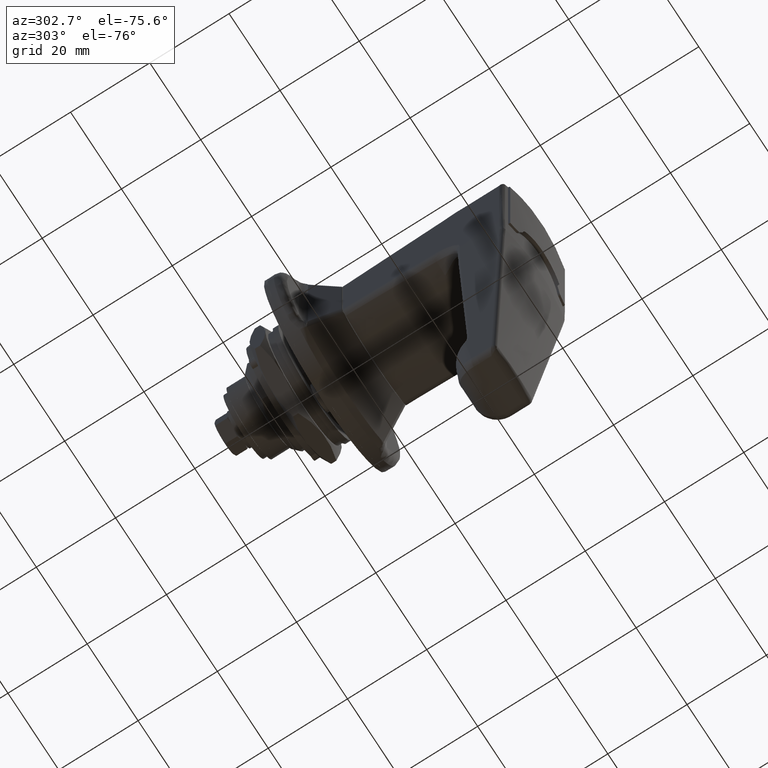
[diagram: clean part render]
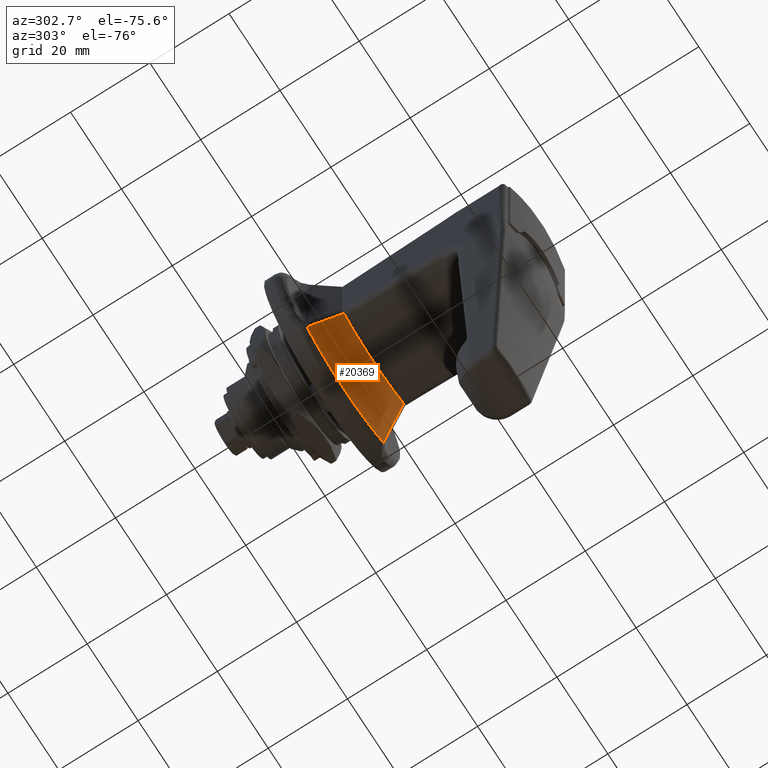
[diagram: same view with one face highlighted and labeled with its STEP entity id]
A machine part, auxiliary view. The second image highlights one B-rep face of the part: STEP entity #20369.
In plain terms, the highlighted face is a freeform B-spline surface patch.
Its self-contained STEP definition (entity closure, byte-faithful):
#17411=CARTESIAN_POINT('',(-12.317423571780660,-11.742579178297200,-10.773186300598161));
#17412=VERTEX_POINT('',#17411);
#17661=CARTESIAN_POINT('',(-12.317423571783280,11.742579177797600,-10.773186300909201));
#17662=VERTEX_POINT('',#17661);
#17676=CARTESIAN_POINT('',(-12.317423571780640,-11.742579178297200,-10.773186300598180));
#17677=CARTESIAN_POINT('',(-12.321921307287580,-10.860520241261300,-11.322452460196670));
#17678=CARTESIAN_POINT('',(-12.325578662772839,-9.949014943190678,-11.803118988646981));
#17679=CARTESIAN_POINT('',(-12.331659711338579,-8.070478089843295,-12.635092871213249));
#17680=CARTESIAN_POINT('',(-12.334077562975621,-7.103437036696949,-12.986378139702831));
#17681=CARTESIAN_POINT('',(-12.336194610548411,-5.983743178821182,-13.307552710566441));
#17682=CARTESIAN_POINT('',(-12.336421493370640,-5.858888675297977,-13.342204204330530));
#17683=CARTESIAN_POINT('',(-12.336859048984151,-5.608284770876806,-13.409422327969191));
#17684=CARTESIAN_POINT('',(-12.337069752709381,-5.482504640362691,-13.441994153030800));
#17685=CARTESIAN_POINT('',(-12.337676038687700,-5.105207246575358,-13.536220615145149));
#17686=CARTESIAN_POINT('',(-12.338046654547950,-4.853278270538231,-13.594513360883850));
#17687=CARTESIAN_POINT('',(-12.339064686495069,-4.096313467419974,-13.755979314439969));
#17688=CARTESIAN_POINT('',(-12.339618768889389,-3.590101573578827,-13.845760826718420));
#17689=CARTESIAN_POINT('',(-12.340943189073389,-2.066805871844187,-14.062042213478280));
#17690=CARTESIAN_POINT('',(-12.341382265058540,-1.045090721618571,-14.135805461785690));
#17691=CARTESIAN_POINT('',(-12.341389583350280,0.497092434095169,-14.137017111140381));
#17692=CARTESIAN_POINT('',(-12.341281692835830,1.012763199428358,-14.119091320412419));
#17693=CARTESIAN_POINT('',(-12.341006680330000,1.659384760429426,-14.073533295882211));
#17694=CARTESIAN_POINT('',(-12.340944563197009,1.788939796182027,-14.063250452550490));
#17695=CARTESIAN_POINT('',(-12.340806465748580,2.047507341523684,-14.040422508775690));
#17696=CARTESIAN_POINT('',(-12.340578588088730,2.434502867558866,-14.002799197587800));
#17697=CARTESIAN_POINT('',(-12.340288604093510,2.818961204606249,-13.955150978422679));
#17698=CARTESIAN_POINT('',(-12.339182288288820,4.094957002973668,-13.774465676126271));
#17699=CARTESIAN_POINT('',(-12.337859598565800,5.098155097167266,-13.560382340912319));
#17700=CARTESIAN_POINT('',(-12.335076907695370,6.577292862596758,-13.137873485035620));
#17701=CARTESIAN_POINT('',(-12.334012275017120,7.066041973760019,-12.980059910359961));
#17702=CARTESIAN_POINT('',(-12.332189098537929,7.792627681996719,-12.717507293581550));
#17703=CARTESIAN_POINT('',(-12.331543769536459,8.033731961012348,-12.625679252053500));
#17704=CARTESIAN_POINT('',(-12.330173684952220,8.513727020378672,-12.433277390365079));
#17705=CARTESIAN_POINT('',(-12.329448481672900,8.752757135772438,-12.332641786370310));
#17706=CARTESIAN_POINT('',(-12.327915235808430,9.227951979385930,-12.122724839028439));
#17707=CARTESIAN_POINT('',(-12.327108818821561,9.463629113947254,-12.013664815259469));
#17708=CARTESIAN_POINT('',(-12.325411506821750,9.931126813683976,-11.787307537817730));
#17709=CARTESIAN_POINT('',(-12.324520516126620,10.162958267598050,-11.669999115874511));
#17710=CARTESIAN_POINT('',(-12.321716718038569,10.851462792176060,-11.306249432457360));
#17711=CARTESIAN_POINT('',(-12.319672425206241,11.301552519610340,-11.047817630673320));
#17712=CARTESIAN_POINT('',(-12.317423571783280,11.742579177797600,-10.773186300909201));
#17713=B_SPLINE_CURVE_WITH_KNOTS('',3,(#17676,#17677,#17678,#17679,#17680,#17681,#17682,#17683,#17684,#17685,#17686,#17687,#17688,#17689,#17690,#17691,#17692,#17693,#17694,#17695,#17696,#17697,#17698,#17699,#17700,#17701,#17702,#17703,#17704,#17705,#17706,#17707,#17708,#17709,#17710,#17711,#17712),.UNSPECIFIED.,.F.,.U.,(4,2,2,2,2,2,2,2,2,2,1,2,2,2,2,2,2,2,4),(0.0,0.125000000000000,0.250000000000000,0.265625000000001,0.281250000000001,0.312500000000001,0.375000000000001,0.500000000000001,0.562500000000001,0.578125000000001,0.593750000000001,0.625000000000001,0.750000000000001,0.812500000000001,0.843750000000001,0.875000000000001,0.906250000000000,0.937500000000000,1.0),.UNSPECIFIED.);
#17714=EDGE_CURVE('',#17412,#17662,#17713,.T.);
#17894=CARTESIAN_POINT('',(-5.092936571873399,15.064256327149250,-17.880553227088448));
#17895=VERTEX_POINT('',#17894);
#18245=CARTESIAN_POINT('',(-5.092936571873170,-15.064256327244800,-17.880553227010701));
#18246=VERTEX_POINT('',#18245);
#18260=CARTESIAN_POINT('',(-5.092936571873399,15.064256327149250,-17.880553227088448));
#18261=CARTESIAN_POINT('',(-5.093573879232038,14.798796386535850,-18.096562572756032));
#18262=CARTESIAN_POINT('',(-5.094091626450478,14.528848009651380,-18.306798902327689));
#18263=CARTESIAN_POINT('',(-5.094997048155808,13.979962742884970,-18.715710279950731));
#18264=CARTESIAN_POINT('',(-5.095383115909922,13.701959241524451,-18.913684803109341));
#18265=CARTESIAN_POINT('',(-5.096452156482028,12.858187275000020,-19.487950196825210));
#18266=CARTESIAN_POINT('',(-5.097060267624521,12.282350101150779,-19.844858911698470));
#18267=CARTESIAN_POINT('',(-5.098278485115817,11.104525556872000,-20.507769596008611));
#18268=CARTESIAN_POINT('',(-5.098885670942255,10.502537436394370,-20.813770109957940));
#18269=CARTESIAN_POINT('',(-5.099896533137595,9.272355056520201,-21.374755815320199));
#18270=CARTESIAN_POINT('',(-5.100285548357850,8.644156979355515,-21.629733597931448));
#18271=CARTESIAN_POINT('',(-5.100331876128971,7.842166179383670,-21.915862431215640));
#18272=CARTESIAN_POINT('',(-5.100323813111617,7.680929495255715,-21.971455865488899));
#18273=CARTESIAN_POINT('',(-5.100285135311588,7.356762144812294,-22.079345084691582));
#18274=CARTESIAN_POINT('',(-5.100254476121162,7.193681893225183,-22.131683954354319));
#18275=CARTESIAN_POINT('',(-5.100144934459324,6.703977137011113,-22.283065112543699));
#18276=CARTESIAN_POINT('',(-5.100049409848879,6.376361573929082,-22.376664135255702));
#18277=CARTESIAN_POINT('',(-5.099790927191742,5.390127492032658,-22.635814078182310));
#18278=CARTESIAN_POINT('',(-5.099668316197066,4.728127389588268,-22.779754992825310));
#18279=CARTESIAN_POINT('',(-5.099708972254287,3.395225386857410,-23.010749852892630));
#18280=CARTESIAN_POINT('',(-5.099871270234316,2.724323407538057,-23.097803293485448));
#18281=CARTESIAN_POINT('',(-5.100282114188340,1.373551249201436,-23.214598911625089));
#18282=CARTESIAN_POINT('',(-5.100531667811366,0.693681655061493,-23.244344826590950));
#18283=CARTESIAN_POINT('',(-5.100535231624023,-0.333042699724637,-23.244741787879718));
#18284=CARTESIAN_POINT('',(-5.100470484505174,-0.675035285782485,-23.237491649076439));
#18285=CARTESIAN_POINT('',(-5.100294383243510,-1.358361195801673,-23.208259045342590));
#18286=CARTESIAN_POINT('',(-5.100182943603205,-1.699953844060525,-23.186256079558039));
#18287=CARTESIAN_POINT('',(-5.099871670321132,-2.722321151304927,-23.098212467638980));
#18288=CARTESIAN_POINT('',(-5.099708650213115,-3.396629039821856,-23.010571335530699));
#18289=CARTESIAN_POINT('',(-5.099668504207188,-4.731148323856801,-22.779166504454778));
#18290=CARTESIAN_POINT('',(-5.099791353676099,-5.391358679446481,-22.635398665215671));
#18291=CARTESIAN_POINT('',(-5.100133557785642,-6.697820136067290,-22.292286849616680));
#18292=CARTESIAN_POINT('',(-5.100355034385453,-7.344071244905527,-22.092942903880129));
#18293=CARTESIAN_POINT('',(-5.100307945141661,-8.302865796354919,-21.751796402506510));
#18294=CARTESIAN_POINT('',(-5.100209697015655,-8.620699049747049,-21.631054185218940));
#18295=CARTESIAN_POINT('',(-5.099961758299749,-9.094756271433075,-21.439220573917499));
#18296=CARTESIAN_POINT('',(-5.099863963677028,-9.252326563558732,-21.373489300862669));
#18297=CARTESIAN_POINT('',(-5.099645960990250,-9.566560916365150,-21.238418771520710));
#18298=CARTESIAN_POINT('',(-5.099525883982622,-9.723023378604633,-21.169162405207292));
#18299=CARTESIAN_POINT('',(-5.098889112558140,-10.499885495418180,-20.815289657306401));
#18300=CARTESIAN_POINT('',(-5.098277018199330,-11.106075174674070,-20.507040400596111));
#18301=CARTESIAN_POINT('',(-5.097053792016768,-12.288478798428169,-19.841265617692631));
#18302=CARTESIAN_POINT('',(-5.096444783713167,-12.864691667896910,-19.483738320053899));
#18303=CARTESIAN_POINT('',(-5.095020937902042,-13.987127373584491,-18.719384362803840));
#18304=CARTESIAN_POINT('',(-5.094211150591439,-14.533351440846840,-18.312559716798841));
#18305=CARTESIAN_POINT('',(-5.092936571873170,-15.064256327244800,-17.880553227010701));
#18306=B_SPLINE_CURVE_WITH_KNOTS('',3,(#18260,#18261,#18262,#18263,#18264,#18265,#18266,#18267,#18268,#18269,#18270,#18271,#18272,#18273,#18274,#18275,#18276,#18277,#18278,#18279,#18280,#18281,#18282,#18283,#18284,#18285,#18286,#18287,#18288,#18289,#18290,#18291,#18292,#18293,#18294,#18295,#18296,#18297,#18298,#18299,#18300,#18301,#18302,#18303,#18304,#18305),.UNSPECIFIED.,.F.,.U.,(4,2,2,2,2,2,2,2,2,2,2,2,2,2,2,2,2,2,2,2,2,2,4),(0.0,0.031250000000000,0.062500000000000,0.125000000000000,0.187500000000000,0.250000000000000,0.265625000000000,0.281250000000000,0.312500000000000,0.375000000000000,0.437500000000000,0.500000000000000,0.531249999999999,0.562499999999999,0.624999999999999,0.687499999999999,0.749999999999999,0.781249999999999,0.796874999999999,0.812499999999999,0.874999999999999,0.937500000000000,1.0),.UNSPECIFIED.);
#18307=EDGE_CURVE('',#17895,#18246,#18306,.T.);
#20110=CARTESIAN_POINT('',(-5.092936571873155,-15.064256327244800,-17.880553227010690));
#20111=CARTESIAN_POINT('',(-6.299438374271915,-14.514986793067949,-16.696427380645432));
#20112=CARTESIAN_POINT('',(-7.505087160585272,-13.963988061288930,-15.512234144892600));
#20113=CARTESIAN_POINT('',(-9.913688014871784,-12.857268374225200,-13.143309435198971));
#20114=CARTESIAN_POINT('',(-11.116650880987670,-12.301555705665830,-11.958593568016090));
#20115=CARTESIAN_POINT('',(-12.317423571780649,-11.742579178297170,-10.773186300598191));
#20116=B_SPLINE_CURVE_WITH_KNOTS('',3,(#20110,#20111,#20112,#20113,#20114,#20115),.UNSPECIFIED.,.F.,.U.,(4,2,4),(0.0,0.500000000000000,1.0),.UNSPECIFIED.);
#20117=EDGE_CURVE('',#18246,#17412,#20116,.T.);
#20162=CARTESIAN_POINT('',(-12.317423571783269,11.742579177797570,-10.773186300909201));
#20163=CARTESIAN_POINT('',(-11.116650899880771,12.301555696439181,-11.958593549654431));
#20164=CARTESIAN_POINT('',(-9.913687179496561,12.857268758780391,-13.143310257653329));
#20165=CARTESIAN_POINT('',(-7.505086704907516,13.963988269360611,-15.512234592658171));
#20166=CARTESIAN_POINT('',(-6.299438158280856,14.514986891236850,-16.696427592761051));
#20167=CARTESIAN_POINT('',(-5.092936571873395,15.064256327149231,-17.880553227088431));
#20168=B_SPLINE_CURVE_WITH_KNOTS('',3,(#20162,#20163,#20164,#20165,#20166,#20167),.UNSPECIFIED.,.F.,.U.,(4,2,4),(0.0,0.500000000000000,1.0),.UNSPECIFIED.);
#20169=EDGE_CURVE('',#17662,#17895,#20168,.T.);
#20322=CARTESIAN_POINT('',(-12.385665014923040,-12.084953919685100,-10.465764844847710));
#20323=CARTESIAN_POINT('',(-12.385665014923040,-10.375562525793480,-11.587514383361031));
#20324=CARTESIAN_POINT('',(-12.385665014923040,-8.509060367546956,-12.464348008223940));
#20325=CARTESIAN_POINT('',(-12.385665014923040,-4.439564743204798,-13.735420415535060));
#20326=CARTESIAN_POINT('',(-12.385665014923040,-2.221437521705511,-14.080924509532251));
#20327=CARTESIAN_POINT('',(-12.385665014923040,2.221437521705521,-14.080924509532251));
#20328=CARTESIAN_POINT('',(-12.385665014923040,4.439564743204809,-13.735420415535060));
#20329=CARTESIAN_POINT('',(-12.385665014923040,8.509060367516574,-12.464348008233429));
#20330=CARTESIAN_POINT('',(-12.385665014923040,10.375562525735290,-11.587514383388370));
#20331=CARTESIAN_POINT('',(-12.385665014923040,12.084953919605161,-10.465764844900169));
#20332=CARTESIAN_POINT('',(-9.940257067816841,-13.134625617282079,-12.910373985627880));
#20333=CARTESIAN_POINT('',(-9.940257067816841,-11.318602890459060,-14.220817040535900));
#20334=CARTESIAN_POINT('',(-9.940257067816841,-9.303808929695952,-15.254626616656680));
#20335=CARTESIAN_POINT('',(-9.940257067816841,-4.872909621363709,-16.751607900276550));
#20336=CARTESIAN_POINT('',(-9.940257067816841,-2.437729523234382,-17.156909348659159));
#20337=CARTESIAN_POINT('',(-9.940257067816841,2.437729523234388,-17.156909348659159));
#20338=CARTESIAN_POINT('',(-9.940257067816841,4.872909621363719,-16.751607900276550));
#20339=CARTESIAN_POINT('',(-9.940257067816841,9.303808929662862,-15.254626616667860));
#20340=CARTESIAN_POINT('',(-9.940257067816841,11.318602890396249,-14.220817040568130));
#20341=CARTESIAN_POINT('',(-9.940257067816841,13.134625617197150,-12.910373985689160));
#20342=CARTESIAN_POINT('',(-7.494849120710657,-14.184297314879050,-15.354983126408049));
#20343=CARTESIAN_POINT('',(-7.494849120710657,-12.261643255124650,-16.854119697710761));
#20344=CARTESIAN_POINT('',(-7.494849120710656,-10.098557491844931,-18.044905225089391));
#20345=CARTESIAN_POINT('',(-7.494849120710657,-5.306254499522628,-19.767795385018001));
#20346=CARTESIAN_POINT('',(-7.494849120710657,-2.654021524763254,-20.232894187786020));
#20347=CARTESIAN_POINT('',(-7.494849120710657,2.654021524763259,-20.232894187786020));
#20348=CARTESIAN_POINT('',(-7.494849120710657,5.306254499522630,-19.767795385018001));
#20349=CARTESIAN_POINT('',(-7.494849120710657,10.098557491809160,-18.044905225102259));
#20350=CARTESIAN_POINT('',(-7.494849120710657,12.261643255057219,-16.854119697747890));
#20351=CARTESIAN_POINT('',(-7.494849120710657,14.184297314789140,-15.354983126478150));
#20352=CARTESIAN_POINT('',(-5.049441173604463,-15.233969012476020,-17.799592267188231));
#20353=CARTESIAN_POINT('',(-5.049441173604463,-13.204683619790240,-19.487422354885641));
#20354=CARTESIAN_POINT('',(-5.049441173604462,-10.893306053993930,-20.835183833522152));
#20355=CARTESIAN_POINT('',(-5.049441173604463,-5.739599377681540,-22.783982869759491));
#20356=CARTESIAN_POINT('',(-5.049441173604463,-2.870313526292125,-23.308879026912919));
#20357=CARTESIAN_POINT('',(-5.049441173604463,2.870313526292126,-23.308879026912919));
#20358=CARTESIAN_POINT('',(-5.049441173604463,5.739599377681540,-22.783982869759491));
#20359=CARTESIAN_POINT('',(-5.049441173604463,10.893306053955451,-20.835183833536700));
#20360=CARTESIAN_POINT('',(-5.049441173604463,13.204683619718180,-19.487422354927659));
#20361=CARTESIAN_POINT('',(-5.049441173604463,15.233969012381120,-17.799592267267158));
#20362=B_SPLINE_SURFACE_WITH_KNOTS('',3,3,((#20322,#20332,#20342,#20352),(#20323,#20333,#20343,#20353),(#20324,#20334,#20344,#20354),(#20325,#20335,#20345,#20355),(#20326,#20336,#20346,#20356),(#20327,#20337,#20347,#20357),(#20328,#20338,#20348,#20358),(#20329,#20339,#20349,#20359),(#20330,#20340,#20350,#20360),(#20331,#20341,#20351,#20361)),.UNSPECIFIED.,.F.,.F.,.U.,(4,2,2,2,4),(4,4),(0.0,7.920086830725492,16.530531662795060,25.140976494864638,33.061063325466669),(0.0,11.759973410850000),.UNSPECIFIED.);
#20363=ORIENTED_EDGE('',*,*,#20117,.T.);
#20364=ORIENTED_EDGE('',*,*,#17714,.T.);
#20365=ORIENTED_EDGE('',*,*,#20169,.T.);
#20366=ORIENTED_EDGE('',*,*,#18307,.T.);
#20367=EDGE_LOOP('',(#20363,#20364,#20365,#20366));
#20368=FACE_OUTER_BOUND('',#20367,.T.);
#20369=ADVANCED_FACE('',(#20368),#20362,.T.);